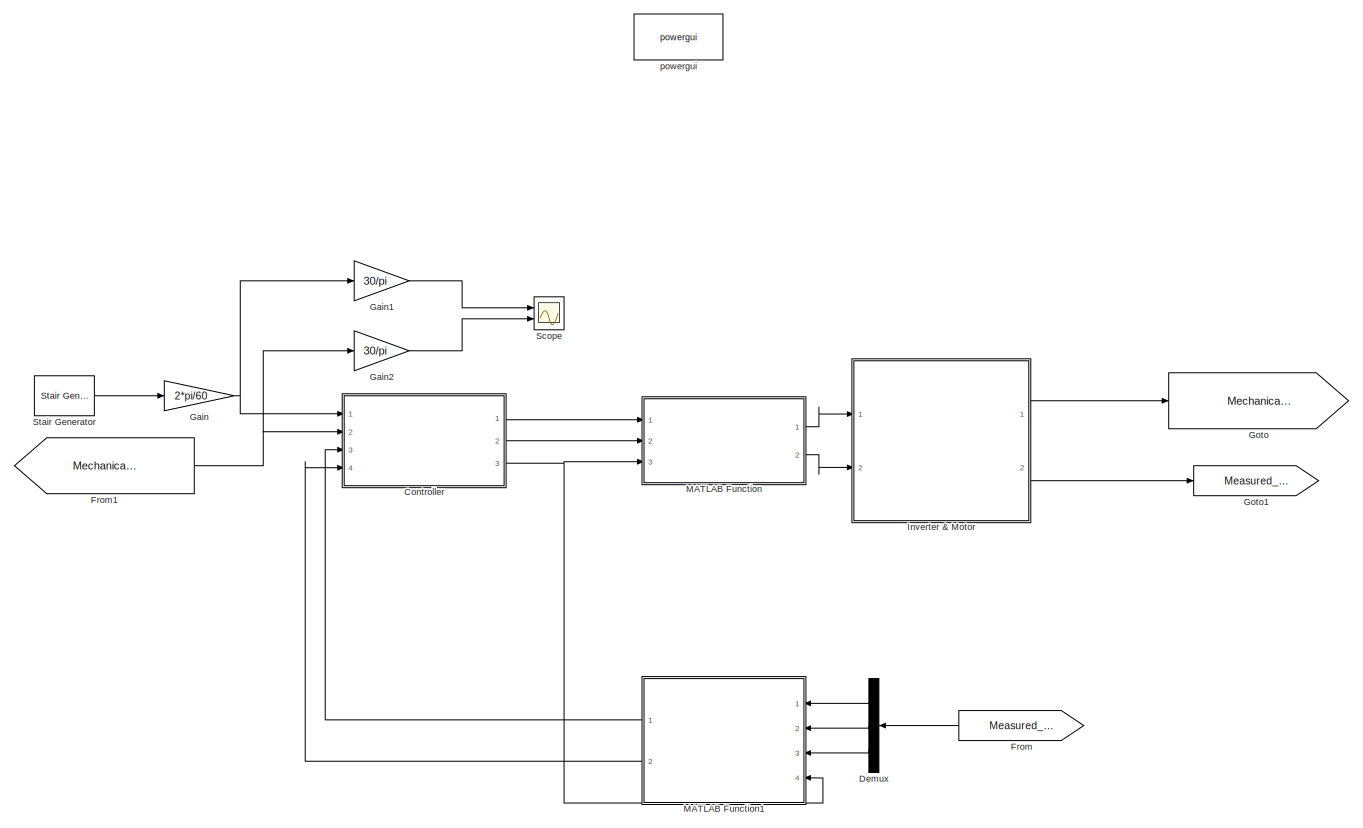
[diagram: root canvas - part 1/2, most of the canvas]
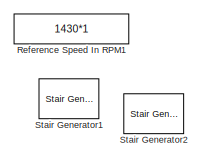
[diagram: root canvas - part 2/2, top left region]
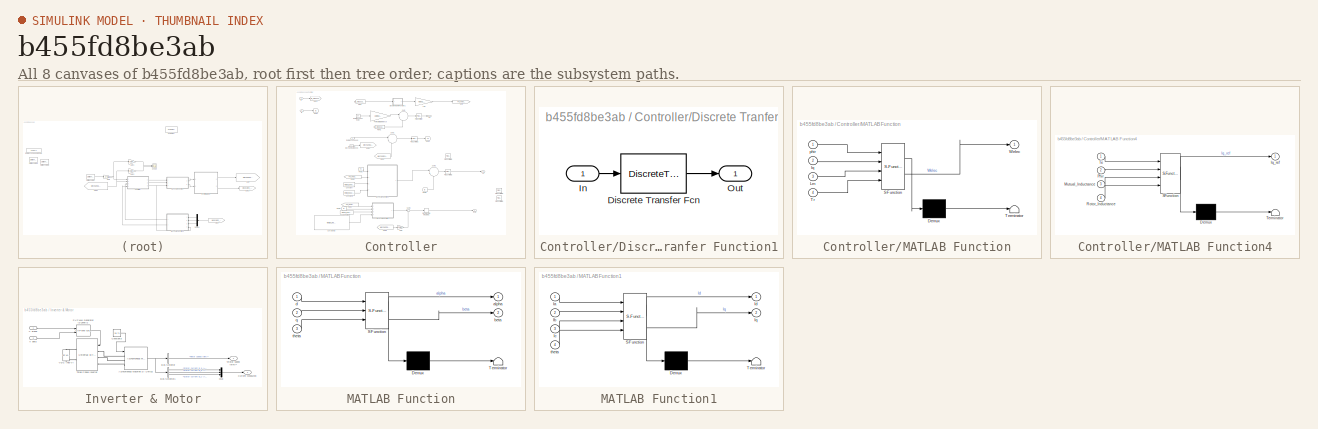
[diagram: thumbnail index - all 8 canvases of the model, root first then tree order]
MODEL slx_b455fd8be3ab
KIND model
CONFIG AbsTol = auto
CONFIG EnableMultiTasking = off
CONFIG FixedStep = auto
CONFIG MaxStep = 1e-4
CONFIG MinStep = auto
CONFIG RelTol = 1e-3
CONFIG SampleTimeConstraint = Unconstrained
CONFIG SolverName = FixedStepDiscrete
CONFIG StartTime = 0.0
CONFIG StopTime = 4
WORKSPACE source: mxarray member
WORKSPACE Mutual_Inductance = 0.1722
WORKSPACE Poles = 2
WORKSPACE Rotor_Inductance = 0.005839
WORKSPACE Rotor_Resistance = 1.395
WORKSPACE Stator_Inductance = 0.005839
WORKSPACE Stator_Resistance = 1.405
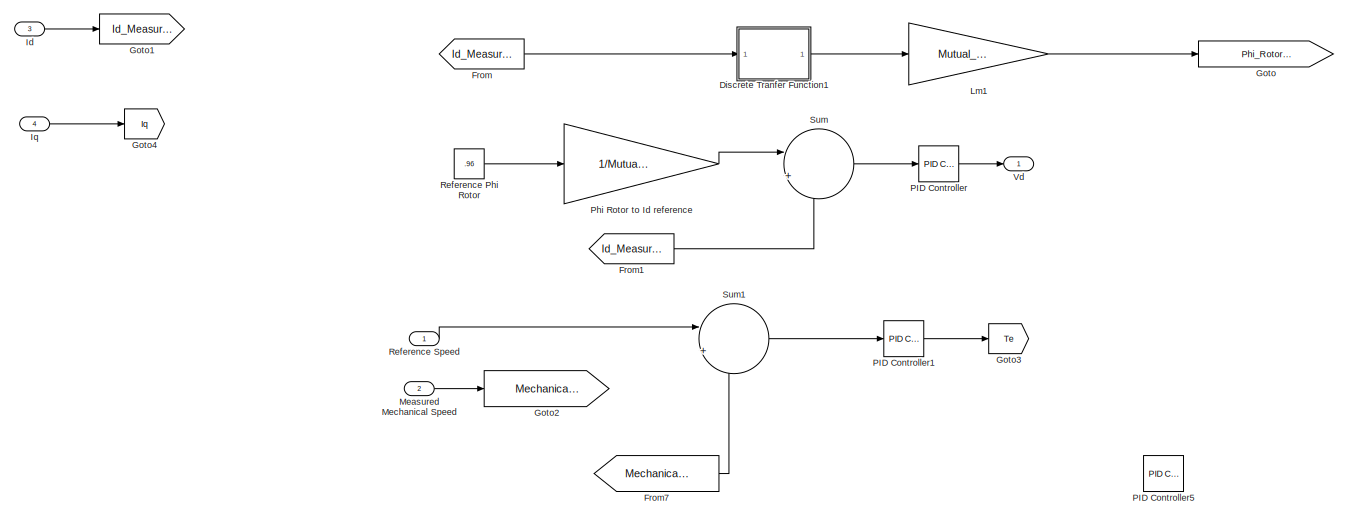
[diagram: Controller - part 1/2, full width, top band]
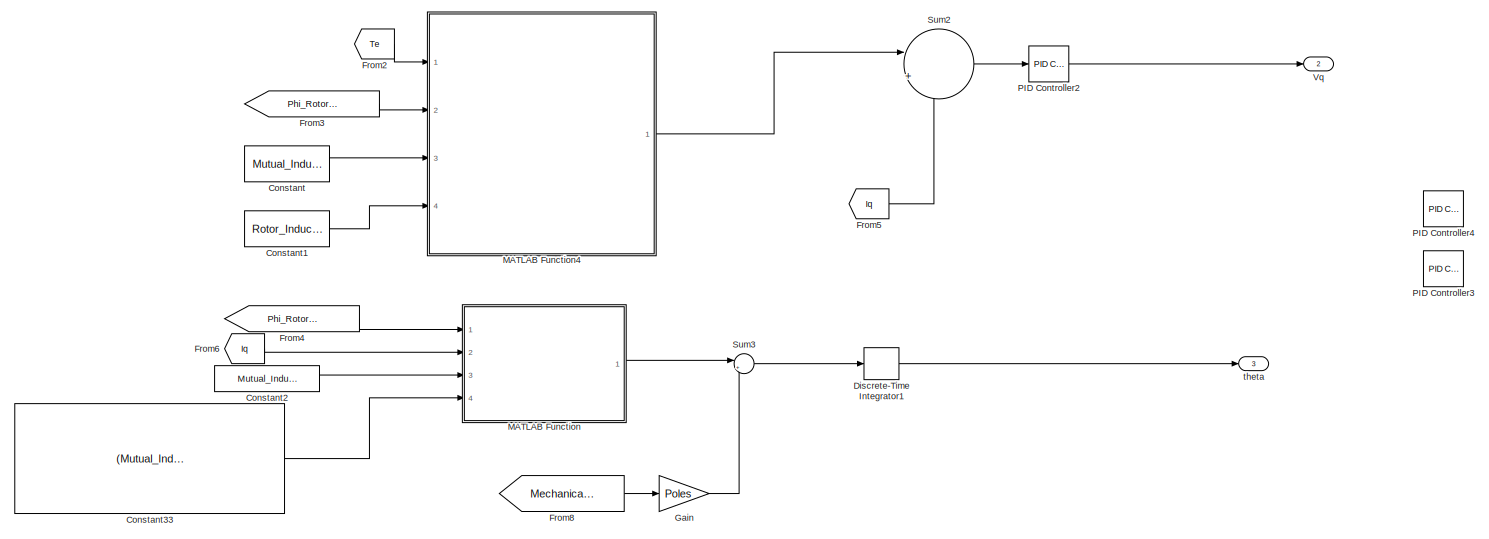
[diagram: Controller - part 2/2, full width, bottom band]
BLOCK [SubSystem] Controller
  Ports = [4, 3]
  RequestExecContextInheritance = off
BLOCK [Constant] Controller/Constant
  Value = Mutual_Inductance
BLOCK [Constant] Controller/Constant1
  Value = Rotor_Inductance
BLOCK [Constant] Controller/Constant2
  Value = Mutual_Inductance
BLOCK [Constant] Controller/Constant33
  Value = (Mutual_Inductance+Rotor_Inductance)/Rotor_Resistance
BLOCK [SubSystem] Controller/Discrete Tranfer Function1
  NameLocation = top
  Ports = [1, 1]
  RequestExecContextInheritance = off
BLOCK [DiscreteTransferFcn] Controller/Discrete Tranfer Function1/Discrete Transfer Fcn
  Denominator = dend
  InputPortMap = u0
  Numerator = numd
  Ports = [1, 1]
  SampleTime = Ts
BLOCK [Inport] Controller/Discrete Tranfer Function1/In
BLOCK [Outport] Controller/Discrete Tranfer Function1/Out
  InitialOutput = 0
  VectorParamsAs1DForOutWhenUnconnected = off
BLOCK [DiscreteIntegrator] Controller/Discrete-Time Integrator1
  ICPrevOutput = DiscIntNeverNeededParam
  ICPrevScaledInput = DiscIntNeverNeededParam
  InitialConditionSetting = Auto
  Ports = [1, 1]
  SampleTime = -1
BLOCK [From] Controller/From
  GotoTag = Id_Measured
BLOCK [From] Controller/From1
  GotoTag = Id_Measured
BLOCK [From] Controller/From2
  GotoTag = Te
BLOCK [From] Controller/From3
  GotoTag = Phi_Rotor_Calculated
BLOCK [From] Controller/From4
  GotoTag = Phi_Rotor_Calculated
BLOCK [From] Controller/From5
  GotoTag = Iq
BLOCK [From] Controller/From6
  GotoTag = Iq
BLOCK [From] Controller/From7
  GotoTag = Mechanical_Speed
BLOCK [From] Controller/From8
  GotoTag = Mechanical_Speed
BLOCK [Gain] Controller/Gain
  Gain = Poles
BLOCK [Goto] Controller/Goto
  GotoTag = Phi_Rotor_Calculated
BLOCK [Goto] Controller/Goto1
  GotoTag = Id_Measured
BLOCK [Goto] Controller/Goto2
  GotoTag = Mechanical_Speed
BLOCK [Goto] Controller/Goto3
  GotoTag = Te
BLOCK [Goto] Controller/Goto4
  GotoTag = Iq
BLOCK [Inport] Controller/Id
  Port = 3
BLOCK [Inport] Controller/Iq
  Port = 4
BLOCK [Gain] Controller/Lm1
  Gain = Mutual_Inductance
  NameLocation = top
  OutDataTypeStr = Inherit: Same as input
  ParamDataTypeStr = Inherit: Same as input
  SaturateOnIntegerOverflow = on
BLOCK [SubSystem] Controller/MATLAB Function
  ErrorFcn = Stateflow.Translate.translate
  PermitHierarchicalResolution = ExplicitOnly
  Ports = [4, 1]
  RequestExecContextInheritance = off
  SFBlockType = MATLAB Function
  TreatAsAtomicUnit = on
BLOCK [Demux] Controller/MATLAB Function/ Demux 
  Outputs = 1
  Ports = [1, 1]
BLOCK [S-Function] Controller/MATLAB Function/ SFunction 
  EnableBusSupport = on
  FunctionName = sf_sfun
  PortCounts = [4 2]
  Ports = [4, 2]
  SFcnIsStateOwnerBlock = off
  SFunctionDeploymentMode = off
  Tag = Stateflow S-Function 8
BLOCK [Terminator] Controller/MATLAB Function/ Terminator 
BLOCK [Inport] Controller/MATLAB Function/Iq
  Port = 2
BLOCK [Inport] Controller/MATLAB Function/Lm
  Port = 3
BLOCK [Inport] Controller/MATLAB Function/Tr
  Port = 4
BLOCK [Outport] Controller/MATLAB Function/Welec
BLOCK [Inport] Controller/MATLAB Function/phir
BLOCK [SubSystem] Controller/MATLAB Function4
  ErrorFcn = Stateflow.Translate.translate
  PermitHierarchicalResolution = ExplicitOnly
  Ports = [4, 1]
  RequestExecContextInheritance = off
  SFBlockType = MATLAB Function
  TreatAsAtomicUnit = on
BLOCK [Demux] Controller/MATLAB Function4/ Demux 
  Outputs = 1
  Ports = [1, 1]
BLOCK [S-Function] Controller/MATLAB Function4/ SFunction 
  EnableBusSupport = on
  FunctionName = sf_sfun
  PortCounts = [4 2]
  Ports = [4, 2]
  SFcnIsStateOwnerBlock = off
  SFunctionDeploymentMode = off
  Tag = Stateflow S-Function 7
BLOCK [Terminator] Controller/MATLAB Function4/ Terminator 
BLOCK [Outport] Controller/MATLAB Function4/Iq_ref
BLOCK [Inport] Controller/MATLAB Function4/Mutual_Inductance
  Port = 3
BLOCK [Inport] Controller/MATLAB Function4/Phir
  Port = 2
BLOCK [Inport] Controller/MATLAB Function4/Rotor_Inductance
  Port = 4
BLOCK [Inport] Controller/MATLAB Function4/Te
BLOCK [Inport] Controller/Measured Mechanical Speed
  Port = 2
BLOCK [Reference] Controller/PID Controller  REF=pid_lib/PID Controller
  Ports = [1, 1]
  SourceBlock = pid_lib/PID Controller
  SourceProductBaseCode = SL
  SourceType = PID 1dof
BLOCK [Reference] Controller/PID Controller1  REF=pid_lib/PID Controller
  Ports = [1, 1]
  SourceBlock = pid_lib/PID Controller
  SourceProductBaseCode = SL
  SourceType = PID 1dof
BLOCK [Reference] Controller/PID Controller2  REF=pid_lib/PID Controller
  Ports = [1, 1]
  SourceBlock = pid_lib/PID Controller
  SourceProductBaseCode = SL
  SourceType = PID 1dof
BLOCK [Reference] Controller/PID Controller3  REF=pid_lib/PID Controller
  Commented = on
  Ports = [1, 1]
  SourceBlock = pid_lib/PID Controller
  SourceProductBaseCode = SL
  SourceType = PID 1dof
BLOCK [Reference] Controller/PID Controller4  REF=pid_lib/PID Controller
  Commented = on
  Ports = [1, 1]
  SourceBlock = pid_lib/PID Controller
  SourceProductBaseCode = SL
  SourceType = PID 1dof
BLOCK [Reference] Controller/PID Controller5  REF=pid_lib/PID Controller
  Commented = on
  Ports = [1, 1]
  SourceBlock = pid_lib/PID Controller
  SourceProductBaseCode = SL
  SourceType = PID 1dof
BLOCK [Gain] Controller/Phi Rotor to Id reference
  Gain = 1/Mutual_Inductance
BLOCK [Constant] Controller/Reference Phi Rotor
  Value = .96
BLOCK [Inport] Controller/Reference Speed
BLOCK [Sum] Controller/Sum
  Inputs = |+-
  Ports = [2, 1]
BLOCK [Sum] Controller/Sum1
  Inputs = |+-
  Ports = [2, 1]
BLOCK [Sum] Controller/Sum2
  Inputs = |+-
  Ports = [2, 1]
BLOCK [Sum] Controller/Sum3
  Inputs = |++
  Ports = [2, 1]
BLOCK [Outport] Controller/Vd
BLOCK [Outport] Controller/Vq
  Port = 2
BLOCK [Outport] Controller/theta
  Port = 3
BLOCK [Demux] Demux
  NameLocation = top
  Outputs = 3
  Ports = [1, 3]
BLOCK [From] From
  GotoTag = Measured_Current
  NameLocation = top
BLOCK [From] From1
  GotoTag = Mechanical_Speed_Measured
BLOCK [Gain] Gain
  Gain = 2*pi/60
BLOCK [Gain] Gain1
  Gain = 30/pi
BLOCK [Gain] Gain2
  Gain = 30/pi
BLOCK [Goto] Goto
  GotoTag = Mechanical_Speed_Measured
BLOCK [Goto] Goto1
  GotoTag = Measured_Current
BLOCK [SubSystem] Inverter & Motor
  Ports = [2, 2]
  RequestExecContextInheritance = off
BLOCK [Outport] Inverter & Motor/<Rotor speed (wm)>
BLOCK [Reference] Inverter & Motor/Asynchronous Machine SI Units2  REF=spsAsynchronousMachineSIUnitsLib/Asynchronous Machine
SI Units
  Ports = [1, 1, 0, 0, 0, 3]
  SourceBlock = spsAsynchronousMachineSIUnitsLib/Asynchronous Machine\nSI Units
  SourceProductBaseCode = PS
  SourceType = Asynchronous Machine
BLOCK [BusSelector] Inverter & Motor/Bus Selector
  OutputSignals = Mechanical.Rotor speed (wm)
  Ports = [1, 1]
BLOCK [BusSelector] Inverter & Motor/Bus Selector1
  OutputSignals = Stator measurements.Stator current is_a (A),Stator measurements.Stator current is_b (A),Stator measurements.Stator current is_c (A)
  Ports = [1, 3]
BLOCK [Constant] Inverter & Motor/Constant3
  Value = 26.71
BLOCK [Outport] Inverter & Motor/Current Measured
  Port = 2
BLOCK [Mux] Inverter & Motor/Mux
  DisplayOption = bar
  Inputs = 3
  Ports = [3, 1]
BLOCK [Reference] Inverter & Motor/SVPWM Generator (2-Level)2  REF=spsSVPWMGenerator2LevelLib/SVPWM Generator
(2-Level)
  Ports = [2, 1]
  SourceBlock = spsSVPWMGenerator2LevelLib/SVPWM Generator\n(2-Level)
  SourceProductBaseCode = PS
  SourceType = SVPWM Generator (2-Level)
BLOCK [Reference] Inverter & Motor/Three Phase Inverter  REF=spsUniversalBridgeLib/Universal Bridge
  AttributesFormatString = \n
  Ports = [1, 0, 0, 0, 0, 3, 2]
  SourceBlock = spsUniversalBridgeLib/Universal Bridge
  SourceProductBaseCode = PS
  SourceType = Universal Bridge
BLOCK [Inport] Inverter & Motor/V alpha
BLOCK [Inport] Inverter & Motor/V beta
  Port = 2
BLOCK [Reference] Inverter & Motor/VDC (780 V)  REF=spsDCVoltageSourceLib/DC Voltage Source
  AttributesFormatString = \n
  Description = source block
  NameLocation = left
  Ports = [0, 0, 0, 0, 0, 1, 1]
  SourceBlock = spsDCVoltageSourceLib/DC Voltage Source
  SourceProductBaseCode = PS
  SourceType = DC Voltage Source
BLOCK [SubSystem] MATLAB Function
  ErrorFcn = Stateflow.Translate.translate
  PermitHierarchicalResolution = ExplicitOnly
  Ports = [3, 2]
  RequestExecContextInheritance = off
  SFBlockType = MATLAB Function
  TreatAsAtomicUnit = on
BLOCK [Demux] MATLAB Function/ Demux 
  Outputs = 1
  Ports = [1, 1]
BLOCK [S-Function] MATLAB Function/ SFunction 
  EnableBusSupport = on
  FunctionName = sf_sfun
  PortCounts = [3 3]
  Ports = [3, 3]
  SFcnIsStateOwnerBlock = off
  SFunctionDeploymentMode = off
  Tag = Stateflow S-Function 2
BLOCK [Terminator] MATLAB Function/ Terminator 
BLOCK [Outport] MATLAB Function/alpha
BLOCK [Outport] MATLAB Function/beta
  Port = 2
BLOCK [Inport] MATLAB Function/d
BLOCK [Inport] MATLAB Function/q
  Port = 2
BLOCK [Inport] MATLAB Function/theta
  Port = 3
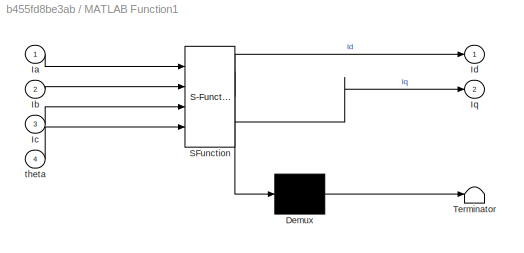
BLOCK [SubSystem] MATLAB Function1
  ErrorFcn = Stateflow.Translate.translate
  NameLocation = top
  PermitHierarchicalResolution = ExplicitOnly
  Ports = [4, 2]
  RequestExecContextInheritance = off
  SFBlockType = MATLAB Function
  TreatAsAtomicUnit = on
BLOCK [Demux] MATLAB Function1/ Demux 
  Outputs = 1
  Ports = [1, 1]
BLOCK [S-Function] MATLAB Function1/ SFunction 
  EnableBusSupport = on
  FunctionName = sf_sfun
  PortCounts = [4 3]
  Ports = [4, 3]
  SFcnIsStateOwnerBlock = off
  SFunctionDeploymentMode = off
  Tag = Stateflow S-Function 1
BLOCK [Terminator] MATLAB Function1/ Terminator 
BLOCK [Inport] MATLAB Function1/Ia
BLOCK [Inport] MATLAB Function1/Ib
  Port = 2
BLOCK [Inport] MATLAB Function1/Ic
  Port = 3
BLOCK [Outport] MATLAB Function1/Id
BLOCK [Outport] MATLAB Function1/Iq
  Port = 2
BLOCK [Inport] MATLAB Function1/theta
  Port = 4
BLOCK [Constant] Reference Speed In RPM1
  Commented = on
  Value = 1430*1
BLOCK [Scope] Scope
  Floating = off
  NumInputPorts = 2
  Ports = [2]
  ScopeSpecificationString = Simulink.scopes.TimeScopeBlockCfg('CurrentConfiguration', extmgr.ConfigurationSet(extmgr.Configuration('Core','General UI',true,'FigureColor',[1 1 1]),extmgr.Configuration('Core','Source UI',true),extmgr.Configuration('Sources','WiredSimulink',true),extmgr.Configuration('Visuals','Time Domain',true,'SerializedDisplays',{struct('MinYLimReal','-273.50546','MaxYLimReal','1641.67184','YLabelReal','','...<+1692ch>
BLOCK [Reference] Stair Generator  REF=eeStairGenerator/Stair Generator
  Ports = [0, 1]
  SourceBlock = eeStairGenerator/Stair Generator
  SourceProductBaseCode = PS
  SourceType = Stair Generator
BLOCK [Reference] Stair Generator1  REF=eeStairGenerator/Stair Generator
  Commented = on
  Ports = [0, 1]
  SourceBlock = eeStairGenerator/Stair Generator
  SourceProductBaseCode = PS
  SourceType = Stair Generator
BLOCK [Reference] Stair Generator2  REF=eeStairGenerator/Stair Generator
  Commented = on
  Ports = [0, 1]
  SourceBlock = eeStairGenerator/Stair Generator
  SourceProductBaseCode = PS
  SourceType = Stair Generator
BLOCK [Reference] powergui  REF=spspowerguiLib/powergui
  Ports = []
  Priority = 2
  SourceBlock = spspowerguiLib/powergui
  SourceProductBaseCode = PS
  SourceType = PSB option menu block
LINE Controller/Constant1:1 -> Controller/MATLAB Function4:4
LINE Controller/Constant2:1 -> Controller/MATLAB Function:3
LINE Controller/Constant33:1 -> Controller/MATLAB Function:4
LINE Controller/Constant:1 -> Controller/MATLAB Function4:3
LINE Controller/Discrete Tranfer Function1/Discrete Transfer Fcn:1 -> Controller/Discrete Tranfer Function1/Out:1
LINE Controller/Discrete Tranfer Function1/In:1 -> Controller/Discrete Tranfer Function1/Discrete Transfer Fcn:1
LINE Controller/Discrete Tranfer Function1:1 -> Controller/Lm1:1
LINE Controller/Discrete-Time Integrator1:1 -> Controller/theta:1
LINE Controller/From1:1 -> Controller/Sum:2
LINE Controller/From2:1 -> Controller/MATLAB Function4:1
LINE Controller/From3:1 -> Controller/MATLAB Function4:2
LINE Controller/From4:1 -> Controller/MATLAB Function:1
LINE Controller/From5:1 -> Controller/Sum2:2
LINE Controller/From6:1 -> Controller/MATLAB Function:2
LINE Controller/From7:1 -> Controller/Sum1:2
LINE Controller/From8:1 -> Controller/Gain:1
LINE Controller/From:1 -> Controller/Discrete Tranfer Function1:1
LINE Controller/Gain:1 -> Controller/Sum3:2
LINE Controller/Id:1 -> Controller/Goto1:1
LINE Controller/Iq:1 -> Controller/Goto4:1
LINE Controller/Lm1:1 -> Controller/Goto:1
LINE Controller/MATLAB Function4:1 -> Controller/Sum2:1
LINE Controller/MATLAB Function:1 -> Controller/Sum3:1
LINE Controller/Measured Mechanical Speed:1 -> Controller/Goto2:1
LINE Controller/PID Controller1:1 -> Controller/Goto3:1
LINE Controller/PID Controller2:1 -> Controller/Vq:1
LINE Controller/PID Controller:1 -> Controller/Vd:1
LINE Controller/Phi Rotor to Id reference:1 -> Controller/Sum:1
LINE Controller/Reference Phi Rotor:1 -> Controller/Phi Rotor to Id reference:1
LINE Controller/Reference Speed:1 -> Controller/Sum1:1
LINE Controller/Sum1:1 -> Controller/PID Controller1:1
LINE Controller/Sum2:1 -> Controller/PID Controller2:1
LINE Controller/Sum3:1 -> Controller/Discrete-Time Integrator1:1
LINE Controller/Sum:1 -> Controller/PID Controller:1
LINE Controller:1 -> MATLAB Function:1
LINE Controller:2 -> MATLAB Function:2
NET Controller:3 -> MATLAB Function1:4, MATLAB Function:3
LINE Demux:1 -> MATLAB Function1:1
LINE Demux:2 -> MATLAB Function1:2
LINE Demux:3 -> MATLAB Function1:3
NET From1:1 -> Controller:2, Gain2:1
LINE From:1 -> Demux:1
LINE Gain1:1 -> Scope:1
LINE Gain2:1 -> Scope:2
NET Gain:1 -> Controller:1, Gain1:1
NET Inverter & Motor/Asynchronous Machine SI Units2:1 -> Inverter & Motor/Bus Selector1:1, Inverter & Motor/Bus Selector:1
LINE Inverter & Motor/Bus Selector1:1 -> Inverter & Motor/Mux:1
LINE Inverter & Motor/Bus Selector1:2 -> Inverter & Motor/Mux:2
LINE Inverter & Motor/Bus Selector1:3 -> Inverter & Motor/Mux:3
LINE Inverter & Motor/Bus Selector:1 -> Inverter & Motor/<Rotor speed (wm)>:1
LINE Inverter & Motor/Constant3:1 -> Inverter & Motor/Asynchronous Machine SI Units2:1
LINE Inverter & Motor/Mux:1 -> Inverter & Motor/Current Measured:1
LINE Inverter & Motor/SVPWM Generator (2-Level)2:1 -> Inverter & Motor/Three Phase Inverter:1
LINE Inverter & Motor/V alpha:1 -> Inverter & Motor/SVPWM Generator (2-Level)2:1
LINE Inverter & Motor/V beta:1 -> Inverter & Motor/SVPWM Generator (2-Level)2:2
LINE Inverter & Motor:1 -> Goto:1
LINE Inverter & Motor:2 -> Goto1:1
LINE MATLAB Function1:1 -> Controller:3
LINE MATLAB Function1:2 -> Controller:4
LINE MATLAB Function:1 -> Inverter & Motor:1
LINE MATLAB Function:2 -> Inverter & Motor:2
LINE Stair Generator:1 -> Gain:1
PLINE Inverter & Motor/Asynchronous Machine SI Units2:LConn1 -- Inverter & Motor/Three Phase Inverter:LConn1
PLINE Inverter & Motor/Asynchronous Machine SI Units2:LConn2 -- Inverter & Motor/Three Phase Inverter:LConn2
PLINE Inverter & Motor/Asynchronous Machine SI Units2:LConn3 -- Inverter & Motor/Three Phase Inverter:LConn3
PLINE Inverter & Motor/Three Phase Inverter:RConn1 -- Inverter & Motor/VDC (780 V):RConn1
PLINE Inverter & Motor/Three Phase Inverter:RConn2 -- Inverter & Motor/VDC (780 V):LConn1
note: NET lines group one-source signal fan-out (src -> all destinations, sorted); 1:1 wires keep LINE
CHART MATLAB Function1 states=1 transitions=1
  STATE_LABEL 'eML_blk_kernel()'
  STATE_LABEL 'SCRIPT:\nfunction [Id, Iq] = Ia_Ib_Ic_theta_to_d_q(Ia, Ib, Ic, theta)\n\nIalpha = sqrt(2/3)*(Ia -.5*Ib-.5*Ic);\nIbeta = sqrt(2/3)*sqrt(3)*.5*(Ib - Ic);\n\nId =  Ialpha*cos(theta) + Ibeta*sin(theta);\nIq = -Ialpha*sin(theta) + Ibeta*cos(theta);'
CHART MATLAB Function states=1 transitions=1
  STATE_LABEL 'eML_blk_kernel()'
  STATE_LABEL 'SCRIPT:\nfunction [alpha, beta] = d_q_theta_to_alpha_beta(d, q, theta)\nalpha = d*cos(theta) - q*sin(theta);\nbeta  = d*sin(theta) + q*cos(theta);'
CHART Controller/MATLAB Function4 states=1 transitions=1
  STATE_LABEL 'eML_blk_kernel()'
  STATE_LABEL 'SCRIPT:\nfunction Iq_ref  = Iq_Calculations(Te, Phir, Mutual_Inductance, Rotor_Inductance)\nP = 2;\nIq_ref = (2*2*(Mutual_Inductance+Rotor_Inductance)*Te)/(3*P*Mutual_Inductance*(Phir+1e-4));\n\n'
CHART Controller/MATLAB Function states=1 transitions=1
  STATE_LABEL 'eML_blk_kernel()'
  STATE_LABEL 'SCRIPT:\nfunction Welec = Calc_W_Electrical(phir, Iq, Lm, Tr)\n%y = Lm*Iq / (phir*Tr+1e-3);\n\nWelec = Lm*Iq / (Tr*(phir+1e-6));\n'
CHART  states=0 transitions=0
CHART  states=0 transitions=0
CHART  states=0 transitions=0
CHART  states=0 transitions=0
